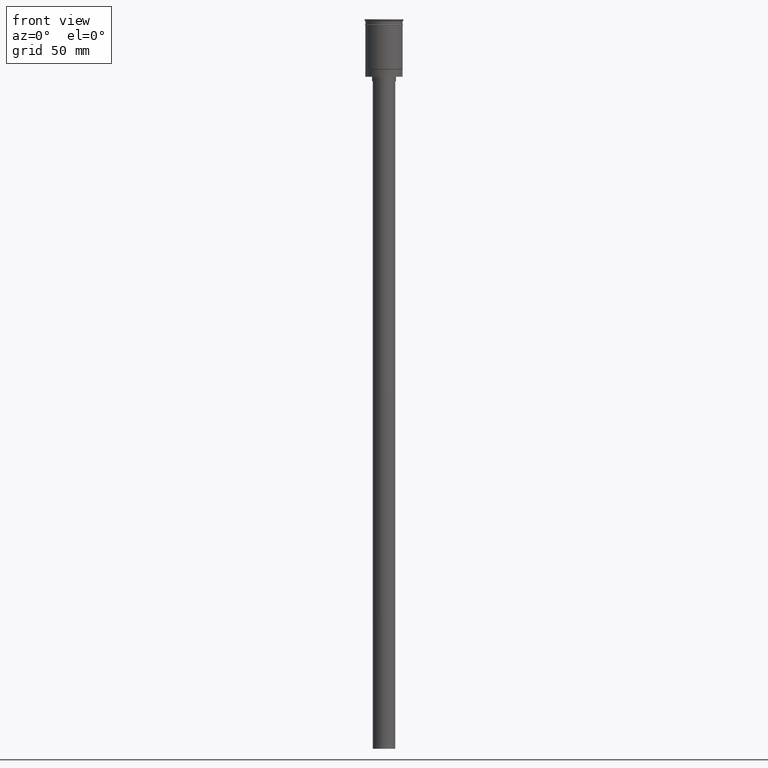
[diagram: clean part render]
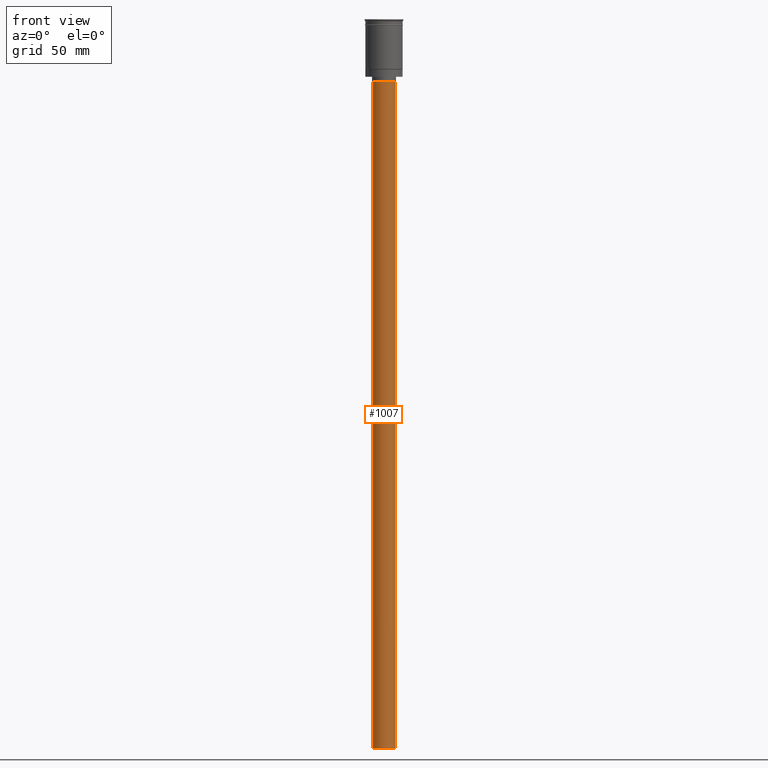
[diagram: same view with one face highlighted and labeled with its STEP entity id]
A machine part, front view. The second image highlights one B-rep face of the part: STEP entity #1007.
In plain terms, the highlighted cylindrical surface (edge-blend (fillet) strip) has radius 7.5 mm, axis along (-0, -0, 1).
Its self-contained STEP definition (entity closure, byte-faithful):
#77 = DIRECTION ( 'NONE',  ( 0.000000000000000000, 0.000000000000000000, -1.000000000000000000 ) ) ;
#83 = AXIS2_PLACEMENT_3D ( 'NONE', #352, #200, #736 ) ;
#200 = DIRECTION ( 'NONE',  ( -0.000000000000000000, -0.000000000000000000, 1.000000000000000000 ) ) ;
#205 = VERTEX_POINT ( 'NONE', #575 ) ;
#226 = FACE_OUTER_BOUND ( 'NONE', #1003, .T. ) ;
#282 = VECTOR ( 'NONE', #790, 1000.000000000000000 ) ;
#352 = CARTESIAN_POINT ( 'NONE',  ( 0.000000000000000000, 0.000000000000000000, -488.5000000000000000 ) ) ;
#365 = DIRECTION ( 'NONE',  ( 0.000000000000000000, 0.000000000000000000, -1.000000000000000000 ) ) ;
#367 = LINE ( 'NONE', #885, #282 ) ;
#369 = CARTESIAN_POINT ( 'NONE',  ( 0.000000000000000000, 0.000000000000000000, -488.5000000000000000 ) ) ;
#435 = DIRECTION ( 'NONE',  ( -1.000000000000000000, 0.000000000000000000, 0.000000000000000000 ) ) ;
#455 = CYLINDRICAL_SURFACE ( 'NONE', #83, 7.500000000000000000 ) ;
#473 = LINE ( 'NONE', #1226, #494 ) ;
#476 = CARTESIAN_POINT ( 'NONE',  ( -7.500000000000000000, 9.184850993605147944E-16, -41.50000000000000000 ) ) ;
#494 = VECTOR ( 'NONE', #1353, 1000.000000000000000 ) ;
#504 = ORIENTED_EDGE ( 'NONE', *, *, #1171, .T. ) ;
#547 = VERTEX_POINT ( 'NONE', #608 ) ;
#575 = CARTESIAN_POINT ( 'NONE',  ( 7.500000000000000000, 0.000000000000000000, -488.5000000000000000 ) ) ;
#608 = CARTESIAN_POINT ( 'NONE',  ( 7.500000000000000000, 0.000000000000000000, -41.50000000000000000 ) ) ;
#643 = ORIENTED_EDGE ( 'NONE', *, *, #1091, .F. ) ;
#683 = VERTEX_POINT ( 'NONE', #1038 ) ;
#736 = DIRECTION ( 'NONE',  ( 1.000000000000000000, 0.000000000000000000, 0.000000000000000000 ) ) ;
#779 = DIRECTION ( 'NONE',  ( -1.000000000000000000, 0.000000000000000000, 0.000000000000000000 ) ) ;
#790 = DIRECTION ( 'NONE',  ( -0.000000000000000000, -0.000000000000000000, 1.000000000000000000 ) ) ;
#834 = AXIS2_PLACEMENT_3D ( 'NONE', #1555, #77, #435 ) ;
#885 = CARTESIAN_POINT ( 'NONE',  ( 7.500000000000000000, 0.000000000000000000, -488.5000000000000000 ) ) ;
#897 = EDGE_CURVE ( 'NONE', #547, #1458, #1501, .T. ) ;
#1003 = EDGE_LOOP ( 'NONE', ( #643, #1098, #504, #1474 ) ) ;
#1007 = ADVANCED_FACE ( 'NONE', ( #226 ), #455, .T. ) ;
#1011 = AXIS2_PLACEMENT_3D ( 'NONE', #369, #365, #779 ) ;
#1038 = CARTESIAN_POINT ( 'NONE',  ( -7.500000000000000000, 9.184850993605147944E-16, -488.5000000000000000 ) ) ;
#1091 = EDGE_CURVE ( 'NONE', #683, #1458, #473, .T. ) ;
#1098 = ORIENTED_EDGE ( 'NONE', *, *, #1529, .F. ) ;
#1171 = EDGE_CURVE ( 'NONE', #205, #547, #367, .T. ) ;
#1226 = CARTESIAN_POINT ( 'NONE',  ( -7.500000000000000000, 9.184850993605147944E-16, -488.5000000000000000 ) ) ;
#1337 = CIRCLE ( 'NONE', #1011, 7.500000000000000000 ) ;
#1353 = DIRECTION ( 'NONE',  ( -0.000000000000000000, -0.000000000000000000, 1.000000000000000000 ) ) ;
#1458 = VERTEX_POINT ( 'NONE', #476 ) ;
#1474 = ORIENTED_EDGE ( 'NONE', *, *, #897, .T. ) ;
#1501 = CIRCLE ( 'NONE', #834, 7.500000000000000000 ) ;
#1529 = EDGE_CURVE ( 'NONE', #205, #683, #1337, .T. ) ;
#1555 = CARTESIAN_POINT ( 'NONE',  ( 0.000000000000000000, 0.000000000000000000, -41.50000000000000000 ) ) ;